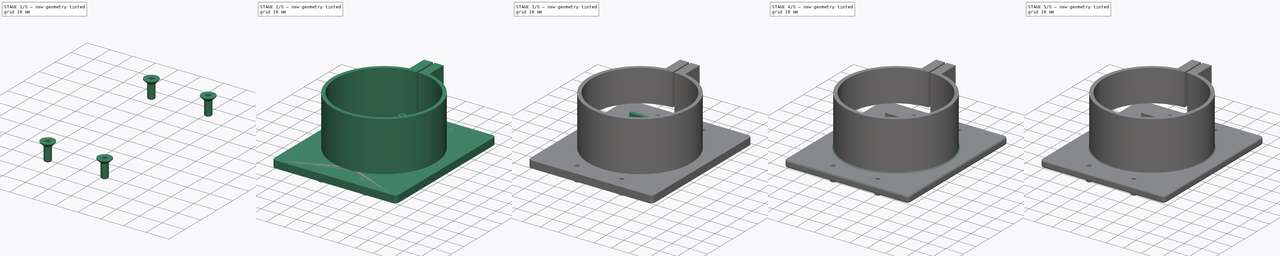
[diagram: build sequence overview — one tinted view per stage of 5, left to right]
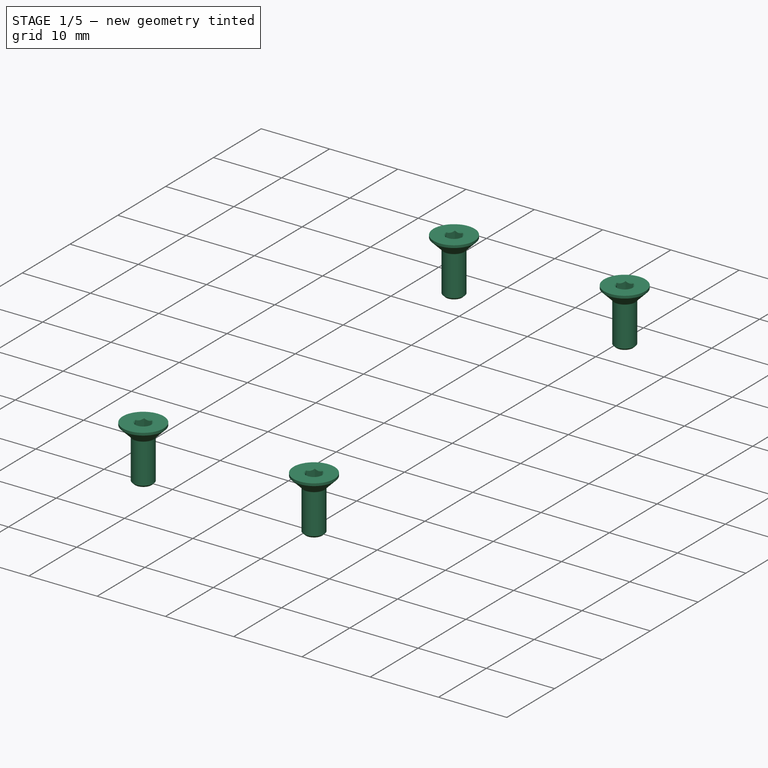
[diagram: stage 1 of 5 — iso view after this stage's code; geometry added in this stage tinted green]
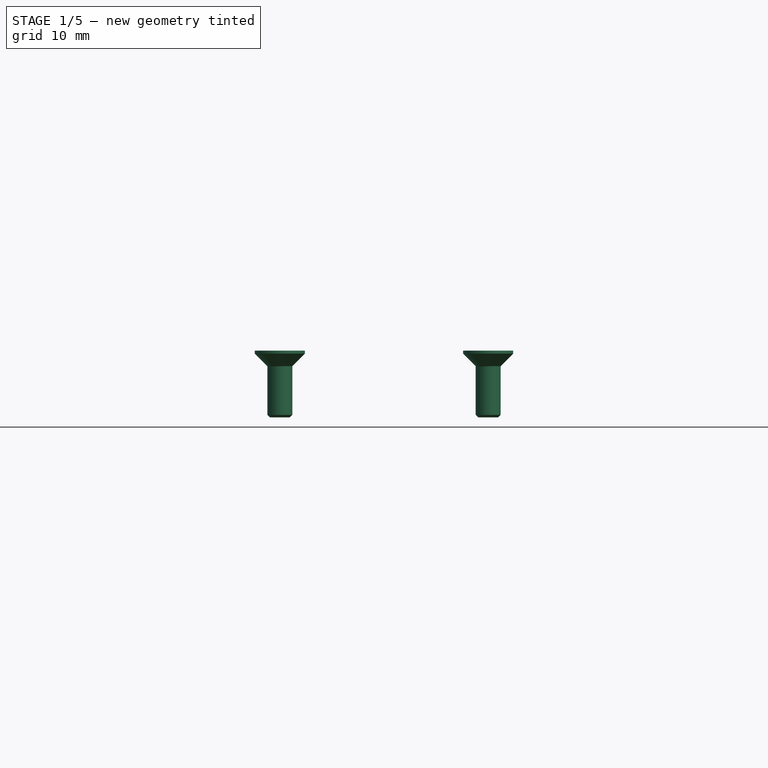
[diagram: stage 1 of 5 — front view after this stage's code; geometry added in this stage tinted green]
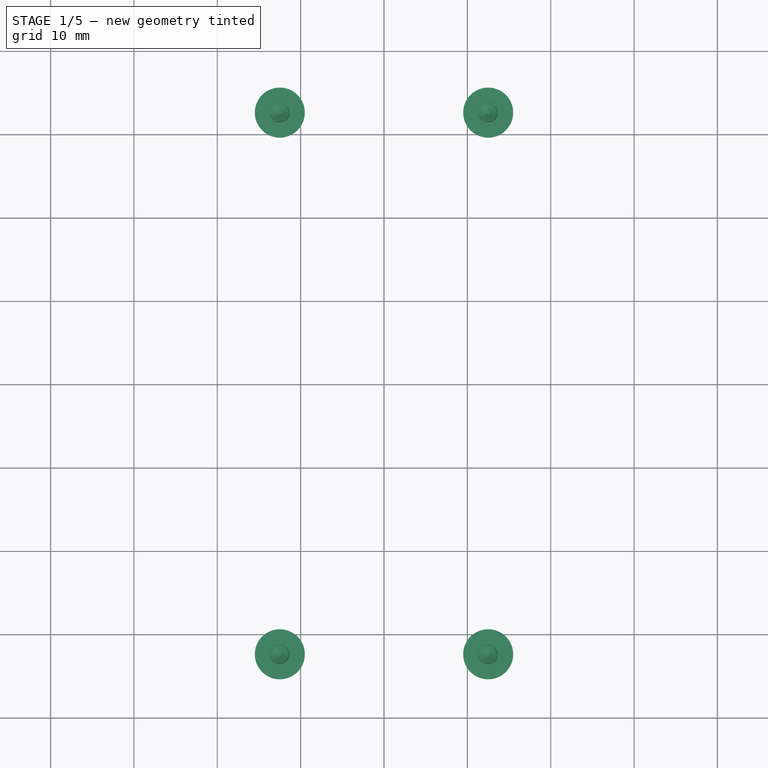
[diagram: stage 1 of 5 — top view after this stage's code; geometry added in this stage tinted green]
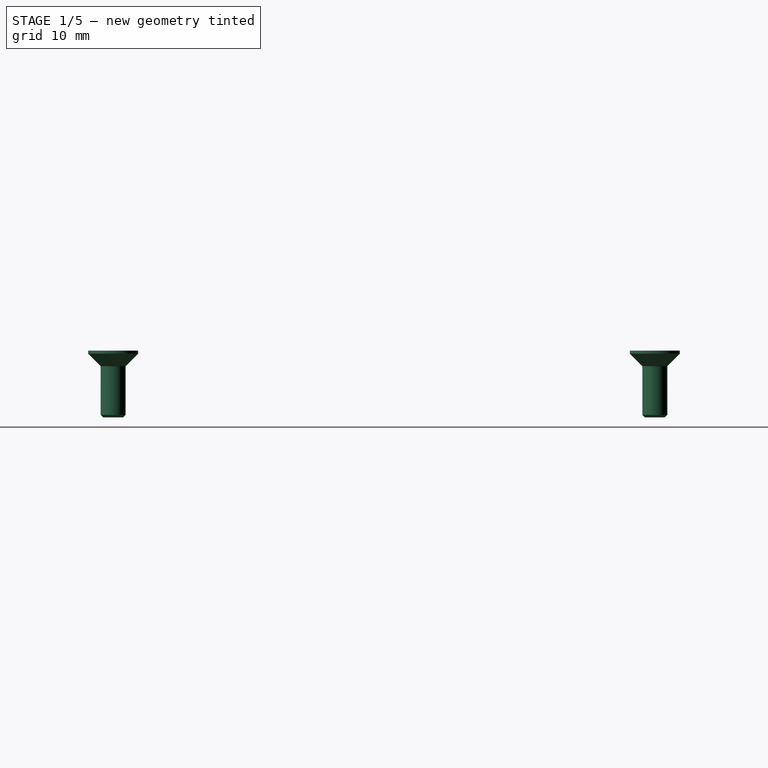
[diagram: stage 1 of 5 — right view after this stage's code; geometry added in this stage tinted green]
FCSTD DOCUMENT  (FreeCAD 0.20R29603 (Git))
Label: ST40_holder
Comment: Holder for a Raymarine ST40 Instrument with bay for seatalk_wifi hardware.
License: All rights reserved
LicenseURL: http://en.wikipedia.org/wiki/All_rights_reserved
objects: Sketcher::SketchObject×9, Part::FeaturePython×6, PartDesign::Pad×4, PartDesign::Fillet×4, PartDesign::Hole×3, PartDesign::Pocket×2, PartDesign::Body×2, Part::Feature×2
note: 45 computed .brp shape members not serialized (recipe doc carries the construction recipe); baked Part::Feature solids carry a one-line shape summary decoded from their .brp

FEATURE [Part::Feature] Part__Feature  label="DIN Left (author: marauder156)"
  Placement = pos=(0,-26.5,-10) rot=(1,0,0;1.5708rad)
  shape: bbox 60.03 x 12.3 x 16.01 mm, 90 faces (baked)
FEATURE [Part::Feature] Part__Feature001  label="DIN Right (author: marauder156)"
  Placement = pos=(0,38.5,-10) rot=(1,0,0;1.5708rad)
  shape: bbox 60.03 x 12.3 x 16.01 mm, 90 faces (baked)
FEATURE [Part::FeaturePython] Screw002  label="M3x8-Screw_1"  # Fasteners workbench fastener (typed FeaturePython)
  Placement = pos=(12.5,-32.5,4) rot=(0,0,1;0rad)
  diameter = 3
  invert = false
  leftHanded = false
  length = 0
  lengthCustom = 8
  matchOuter = false
  offset = 0
  thread = false
  type = 29
FEATURE [Part::FeaturePython] Screw003  label="M3x8-Screw_2"  # Fasteners workbench fastener (typed FeaturePython)
  Placement = pos=(-12.5,-32.5,4) rot=(0,0,1;0rad)
  diameter = 3
  invert = false
  leftHanded = false
  length = 0
  lengthCustom = 8
  matchOuter = false
  offset = 0
  thread = false
  type = 29
FEATURE [Part::FeaturePython] Screw004  label="M3x8-Screw_3"  # Fasteners workbench fastener (typed FeaturePython)
  Placement = pos=(-12.5,32.5,4) rot=(0,0,1;0rad)
  diameter = 3
  invert = false
  leftHanded = false
  length = 0
  lengthCustom = 8
  matchOuter = false
  offset = 0
  thread = false
  type = 29
FEATURE [Part::FeaturePython] Screw005  label="M3x8-Screw_4"  # Fasteners workbench fastener (typed FeaturePython)
  Placement = pos=(12.5,32.5,4) rot=(0,0,1;0rad)
  diameter = 3
  invert = false
  leftHanded = false
  length = 0
  lengthCustom = 8
  matchOuter = false
  offset = 0
  thread = false
  type = 29
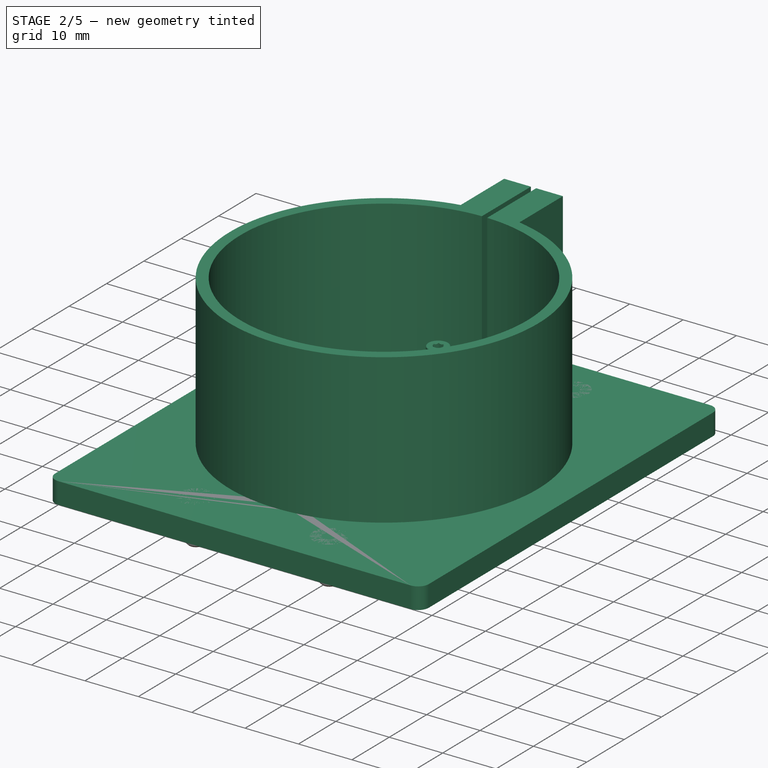
[diagram: stage 2 of 5 — iso view after this stage's code; geometry added in this stage tinted green]
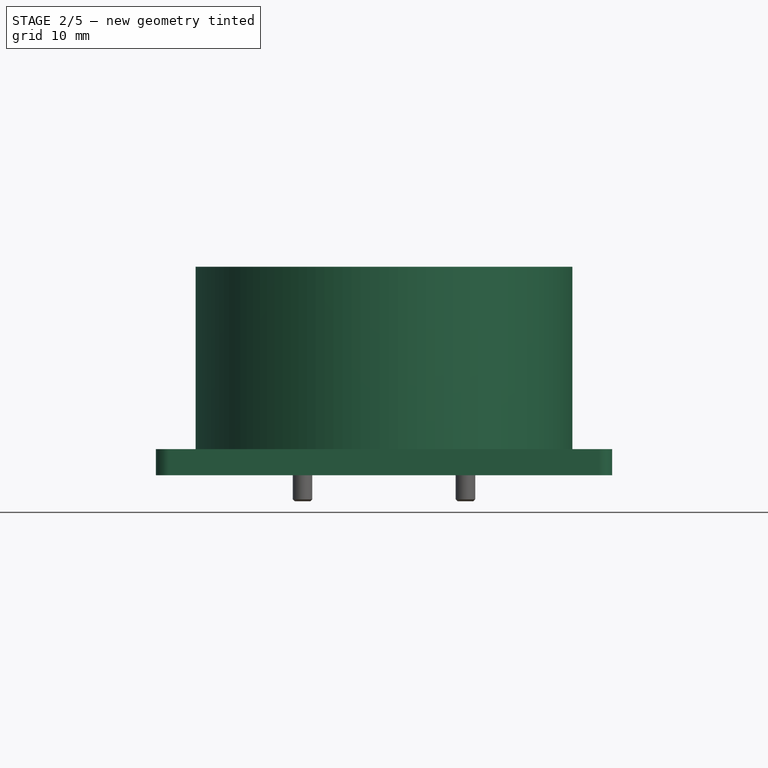
[diagram: stage 2 of 5 — front view after this stage's code; geometry added in this stage tinted green]
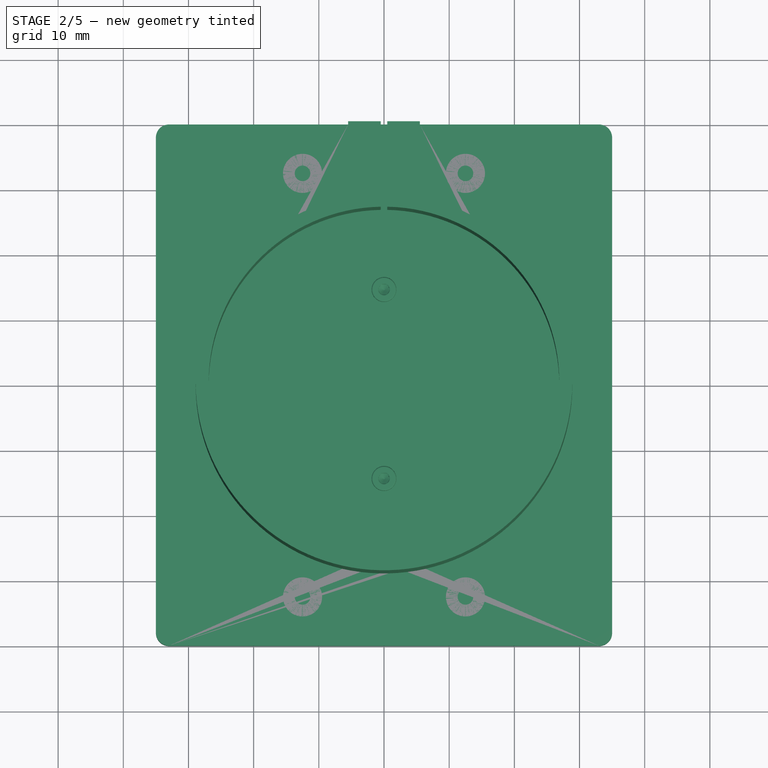
[diagram: stage 2 of 5 — top view after this stage's code; geometry added in this stage tinted green]
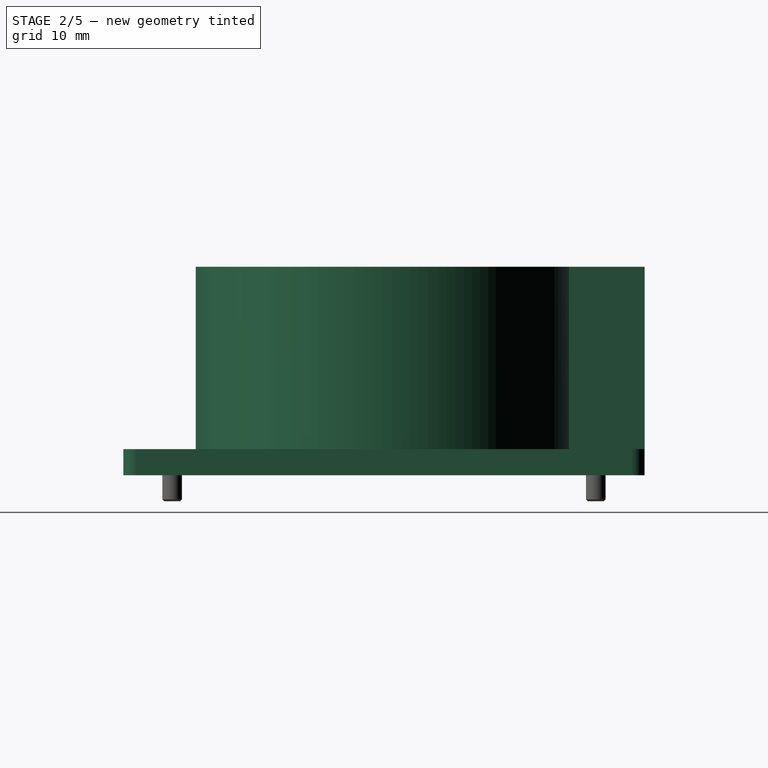
[diagram: stage 2 of 5 — right view after this stage's code; geometry added in this stage tinted green]
FEATURE [Sketcher::SketchObject] Sketch  label="Sketch Base"
  FullyConstrained = true
  MapMode = 5
  Support = -> [XY_Plane]
  sketch-geometry (8):
    g0: LineSegment StartX=-33 StartY=40 StartZ=0 EndX=33 EndY=40 EndZ=0
    g1: LineSegment StartX=35 StartY=38 StartZ=0 EndX=35 EndY=-38 EndZ=0
    g2: LineSegment StartX=33 StartY=-40 StartZ=0 EndX=-33 EndY=-40 EndZ=0
    g3: LineSegment StartX=-35 StartY=-38 StartZ=0 EndX=-35 EndY=38 EndZ=0
    g4: ArcOfCircle CenterX=-33 CenterY=38 CenterZ=0 NormalX=0 NormalY=0 NormalZ=1 AngleXU=0 Radius=2 StartAngle=1.5708 EndAngle=3.14159
    g5: ArcOfCircle CenterX=33 CenterY=38 CenterZ=0 NormalX=0 NormalY=0 NormalZ=1 AngleXU=0 Radius=2 StartAngle=-9e-16 EndAngle=1.5708
    g6: ArcOfCircle CenterX=-33 CenterY=-38 CenterZ=0 NormalX=0 NormalY=0 NormalZ=1 AngleXU=0 Radius=2 StartAngle=3.14159 EndAngle=4.71239
    g7: ArcOfCircle CenterX=33 CenterY=-38 CenterZ=0 NormalX=0 NormalY=0 NormalZ=1 AngleXU=0 Radius=2 StartAngle=4.71239 EndAngle=6.28319
  constraints (18):
    c: Horizontal(g2)
    c: Vertical(g1)
    c: Tangent(g3,g4) = 1.5708
    c: Tangent(g0,g4) = 1.5708
    c: Tangent(g0,g5) = 1.5708
    c: Tangent(g1,g5) = 1.5708
    c: Tangent(g3,g6) = 1.5708
    c: Tangent(g2,g6) = 1.5708
    c: Tangent(g2,g7) = 1.5708
    c: Tangent(g1,g7) = 1.5708
    c: Equal(g4,g5)
    c: Equal(g5,g7)
    c: Equal(g7,g6)
    c: Radius(g5) = 2
    c: DistanceX(g3,g1) = 70  'base_width'
    c: DistanceY(g2,g0) = 80  'base_height'
    c: Symmetric(g0,g0,g-2)
    c: Symmetric(g3,g3,g-1)
FEATURE [PartDesign::Pad] Pad  label="Pad Base"
  AlongSketchNormal = false
  Direction = (0,0,1)
  Length = 4
  Length2 = 100
  Profile = -> Sketch
  Type = 0
FEATURE [Sketcher::SketchObject] Sketch001  label="Sketch Holder"
  AttachmentOffset = pos=(0,0,4) rot=(0,0,1;0rad)
  FullyConstrained = true
  MapMode = 5
  Placement = pos=(0,0,4) rot=(0,0,1;0rad)
  Support = -> [XY_Plane]
  expr: .AttachmentOffset.Base.z = Pad.Length
  expr: Constraints[19] = Sketch.Constraints.base_height / 2
  sketch-geometry (8):
    g0: ArcOfCircle CenterX=0 CenterY=0 CenterZ=0 NormalX=0 NormalY=0 NormalZ=1 AngleXU=0 Radius=26.9 StartAngle=1.58938 EndAngle=7.83539
    g1: ArcOfCircle CenterX=0 CenterY=0 CenterZ=0 NormalX=0 NormalY=0 NormalZ=1 AngleXU=0 Radius=28.9 StartAngle=1.76228 EndAngle=7.6625
    g2: LineSegment StartX=-5.5 StartY=28.3718 StartZ=0 EndX=-5.5 EndY=40 EndZ=0
    g3: LineSegment StartX=-5.5 StartY=40 StartZ=0 EndX=-0.5 EndY=40 EndZ=0
    g4: LineSegment StartX=-0.5 StartY=26.8954 StartZ=0 EndX=-0.5 EndY=40 EndZ=0
    g5: LineSegment StartX=0.5 StartY=26.8954 StartZ=0 EndX=0.5 EndY=40 EndZ=0
    g6: LineSegment StartX=0.5 StartY=40 StartZ=0 EndX=5.5 EndY=40 EndZ=0
    g7: LineSegment StartX=5.5 StartY=40 StartZ=0 EndX=5.5 EndY=28.3718 EndZ=0
  constraints (24):
    c: Coincident(g0,g-1)
    c: Diameter(g0) = 53.8
    c: Coincident(g1,g0)
    c: Diameter(g1) = 57.8
    c: Coincident(g2,g1)
    c: Vertical(g2)
    c: Coincident(g3,g2)
    c: Horizontal(g3)
    c: Coincident(g4,g0)
    c: Coincident(g4,g3)
    c: Coincident(g5,g0)
    c: Coincident(g6,g5)
    c: Coincident(g7,g6)
    c: Coincident(g7,g1)
    c: Vertical(g4)
    c: Vertical(g5)
    c: Vertical(g7)
    c: Horizontal(g6)
    c: Horizontal(g3,g5)
    c: DistanceY(g0,g5) = 40
    c: Equal(g3,g6)
    c: DistanceX(g3,g3) = 5  'wall_thickness'
    c: Horizontal(g0,g0)
    c: DistanceX(g3,g5) = 1  'slit_width'
FEATURE [Sketcher::SketchObject] Sketch002  label="Sketch Cutout"
  FullyConstrained = true
  MapMode = 5
  Placement = pos=(0,0,0) rot=(0.57735,0.57735,0.57735;2.0944rad)
  Support = -> [YZ_Plane]
  expr: Constraints[10] = Pad.Length
  expr: Constraints[11] = Sketch.Constraints.base_height / 2
  sketch-geometry (4):
    g0: LineSegment StartX=0 StartY=14 StartZ=0 EndX=40 EndY=14 EndZ=0
    g1: LineSegment StartX=40 StartY=14 StartZ=0 EndX=40 EndY=4 EndZ=0
    g2: LineSegment StartX=40 StartY=4 StartZ=0 EndX=0 EndY=4 EndZ=0
    g3: LineSegment StartX=0 StartY=4 StartZ=0 EndX=0 EndY=14 EndZ=0
  constraints (12):
    c: Coincident(g0,g1)
    c: Coincident(g1,g2)
    c: Coincident(g2,g3)
    c: Coincident(g3,g0)
    c: Horizontal(g0)
    c: Horizontal(g2)
    c: Vertical(g1)
    c: Vertical(g3)
    c: PointOnObject(g0,g-2)
    c: DistanceY(g3,g3) = 10
    c: DistanceY(g-1,g2) = 4
    c: DistanceX(g2,g1) = 40
FEATURE [Sketcher::SketchObject] Sketch003  label="Sketch Hex"
  AttachmentOffset = pos=(0,0,5.5) rot=(0,0,1;0rad)
  FullyConstrained = true
  MapMode = 5
  Placement = pos=(5.5,-1.2e-15,1.2e-15) rot=(0.57735,0.57735,0.57735;2.0944rad)
  Support = -> [YZ_Plane]
  expr: .AttachmentOffset.Base.z = <<Pad Holder>>.<<$Sketch Holder.>>.Constraints.wall_thickness + <<Pad Holder>>.<<$Sketch Holder.>>.Constraints.slit_width / 2
  sketch-geometry (7):
    g0: LineSegment StartX=33 StartY=20.8246 StartZ=0 EndX=35.75 EndY=22.4123 EndZ=0
    g1: LineSegment StartX=35.75 StartY=22.4123 StartZ=0 EndX=35.75 EndY=25.5877 EndZ=0
    g2: LineSegment StartX=35.75 StartY=25.5877 StartZ=0 EndX=33 EndY=27.1754 EndZ=0
    g3: LineSegment StartX=33 StartY=27.1754 StartZ=0 EndX=30.25 EndY=25.5877 EndZ=0
    g4: LineSegment StartX=30.25 StartY=25.5877 StartZ=0 EndX=30.25 EndY=22.4123 EndZ=0
    g5: LineSegment StartX=30.25 StartY=22.4123 StartZ=0 EndX=33 EndY=20.8246 EndZ=0
    g6: Circle CenterX=33 CenterY=24 CenterZ=0 NormalX=0 NormalY=0 NormalZ=1 AngleXU=0 Radius=3.17543
  constraints (17):
    c: Coincident(g0,g1)
    c: Coincident(g1,g2)
    c: Coincident(g2,g3)
    c: Coincident(g3,g4)
    c: Coincident(g4,g5)
    c: Coincident(g5,g0)
    c: Equal(g0, g1-g5) x5
    c: PointOnObject(g0,g6)
    c: PointOnObject(g1,g6)
    c: PointOnObject(g2,g6)
    c: PointOnObject(g3,g6)
    c: PointOnObject(g4,g6)
    c: PointOnObject(g5,g6)
    c: DistanceX(g6) = 33  'nut_x'
    c: DistanceY(g6) = 24  'nut_y'
    c: Vertical(g0,g6)
    c: DistanceX(g3,g1) = 5.5
FEATURE [Sketcher::SketchObject] Sketch004  label="Sketch Cap Screw"
  AttachmentOffset = pos=(0,0,-5.5) rot=(0,0,1;0rad)
  FullyConstrained = true
  MapMode = 5
  Placement = pos=(-5.5,1.2e-15,-1.2e-15) rot=(0.57735,0.57735,0.57735;2.0944rad)
  Support = -> [YZ_Plane]
  expr: .AttachmentOffset.Base.z = -(<<Pad Holder>>.<<$Sketch Holder.>>.Constraints.wall_thickness + <<Pad Holder>>.<<$Sketch Holder.>>.Constraints.slit_width / 2)
  expr: Constraints[0] = Sketch003.Constraints.nut_y
  expr: Constraints[1] = Sketch003.Constraints.nut_x
  sketch-geometry (1):
    g0: Circle CenterX=33 CenterY=24 CenterZ=0 NormalX=0 NormalY=0 NormalZ=1 AngleXU=0 Radius=3
  constraints (3):
    c: DistanceY(g-1,g0) = 24
    c: DistanceX(g-1,g0) = 33
    c: Diameter(g0) = 6
FEATURE [Sketcher::SketchObject] Sketch005  label="Sketch PCB Housing"
  AttachmentOffset = pos=(0,0,4) rot=(0,0,1;0rad)
  FullyConstrained = true
  MapMode = 5
  Placement = pos=(0,0,4) rot=(0,0,1;0rad)
  Support = -> [XY_Plane]
  expr: .AttachmentOffset.Base.z = <<Pad Base>>.Length
  expr: Constraints[17] = .Constraints.wall_thickness
  expr: Constraints[51] = .Constraints.wall_thickness
  sketch-geometry (28):
    g0: LineSegment StartX=-14.5 StartY=12.5 StartZ=0 EndX=10.5 EndY=12.5 EndZ=0
    g1: LineSegment StartX=10.5 StartY=12.5 StartZ=0 EndX=10.5 EndY=10 EndZ=0
    g2: LineSegment StartX=11 StartY=9.5 StartZ=0 EndX=12 EndY=9.5 EndZ=0
    g3: LineSegment StartX=12.5 StartY=10 StartZ=0 EndX=12.5 EndY=14 EndZ=0
    g4: LineSegment StartX=12 StartY=14.5 StartZ=0 EndX=2.5 EndY=14.5 EndZ=0
    g5: LineSegment StartX=-24 StartY=-12.5 StartZ=0 EndX=10.5 EndY=-12.5 EndZ=0
    g6: LineSegment StartX=10.5 StartY=-12.5 StartZ=0 EndX=10.5 EndY=-10 EndZ=0
    g7: LineSegment StartX=11 StartY=-9.5 StartZ=0 EndX=12 EndY=-9.5 EndZ=0
    g8: LineSegment StartX=12.5 StartY=-10 StartZ=0 EndX=12.5 EndY=-14 EndZ=0
    g9: LineSegment StartX=12 StartY=-14.5 StartZ=0 EndX=2.5 EndY=-14.5 EndZ=0
    g10: ArcOfCircle CenterX=12 CenterY=14 CenterZ=0 NormalX=0 NormalY=0 NormalZ=1 AngleXU=0 Radius=0.5 StartAngle=1.3e-15 EndAngle=1.5708
    g11: ArcOfCircle CenterX=12 CenterY=-14 CenterZ=0 NormalX=0 NormalY=0 NormalZ=1 AngleXU=0 Radius=0.5 StartAngle=4.71239 EndAngle=6.28319
    g12: LineSegment StartX=-15 StartY=13 StartZ=0 EndX=-15 EndY=14 EndZ=0
    g13: LineSegment StartX=-24.5 StartY=-13 StartZ=0 EndX=-24.5 EndY=-14 EndZ=0
    g14: ArcOfCircle CenterX=11 CenterY=10 CenterZ=0 NormalX=0 NormalY=0 NormalZ=1 AngleXU=0 Radius=0.5 StartAngle=3.14159 EndAngle=4.71239
    g15: ArcOfCircle CenterX=12 CenterY=10 CenterZ=0 NormalX=0 NormalY=0 NormalZ=1 AngleXU=0 Radius=0.5 StartAngle=4.71239 EndAngle=6.28319
    g16: ArcOfCircle CenterX=11 CenterY=-10 CenterZ=0 NormalX=0 NormalY=0 NormalZ=1 AngleXU=0 Radius=0.5 StartAngle=1.5708 EndAngle=3.14159
    g17: ArcOfCircle CenterX=12 CenterY=-10 CenterZ=0 NormalX=0 NormalY=0 NormalZ=1 AngleXU=0 Radius=0.5 StartAngle=5e-16 EndAngle=1.5708
    g18: ArcOfCircle CenterX=-14.5 CenterY=13 CenterZ=0 NormalX=0 NormalY=0 NormalZ=1 AngleXU=0 Radius=0.5 StartAngle=3.14159 EndAngle=4.71239
    g19: ArcOfCircle CenterX=-14.5 CenterY=14 CenterZ=0 NormalX=0 NormalY=0 NormalZ=1 AngleXU=0 Radius=0.5 StartAngle=1.5708 EndAngle=3.14159
    g20: ArcOfCircle CenterX=-24 CenterY=-13 CenterZ=0 NormalX=0 NormalY=0 NormalZ=1 AngleXU=0 Radius=0.5 StartAngle=1.5708 EndAngle=3.14159
    g21: ArcOfCircle CenterX=-24 CenterY=-14 CenterZ=0 NormalX=0 NormalY=0 NormalZ=1 AngleXU=0 Radius=0.5 StartAngle=3.14159 EndAngle=4.71239
    g22: ArcOfCircle CenterX=0 CenterY=14.5 CenterZ=0 NormalX=0 NormalY=0 NormalZ=1 AngleXU=0 Radius=2.5 StartAngle=-9e-16 EndAngle=3.14159
    g23: ArcOfCircle CenterX=0 CenterY=-14.5 CenterZ=0 NormalX=0 NormalY=0 NormalZ=1 AngleXU=0 Radius=2.5 StartAngle=3.14159 EndAngle=6.28319
    g24: LineSegment StartX=-2.5 StartY=14.5 StartZ=0 EndX=-14.5 EndY=14.5 EndZ=0
    g25: LineSegment StartX=-2.5 StartY=-14.5 StartZ=0 EndX=-24 EndY=-14.5 EndZ=0
    g26: Circle CenterX=0 CenterY=14.5 CenterZ=0 NormalX=0 NormalY=0 NormalZ=1 AngleXU=0 Radius=1
    g27: Circle CenterX=0 CenterY=-14.5 CenterZ=0 NormalX=0 NormalY=0 NormalZ=1 AngleXU=0 Radius=1
  constraints (71):
    c: Horizontal(g0)
    c: Coincident(g0,g1)
    c: Horizontal(g4)
    c: Vertical(g1)
    c: Horizontal(g2)
    c: Vertical(g3)
    c: DistanceY(g-1,g0) = 12.5
    c: Horizontal(g5)
    c: Coincident(g5,g6)
    c: Vertical(g6)
    c: Horizontal(g9)
    c: Horizontal(g7)
    c: Tangent(g4,g10) = -1.5708
    c: Tangent(g3,g10) = -1.5708
    c: Tangent(g9,g11) = 1.5708
    c: Tangent(g8,g11) = 1.5708
    c: Symmetric(g8,g3,g-1)
    c: DistanceY(g0,g4) = 2
    c: Vertical(g12)
    c: Vertical(g13)
    c: Equal(g11,g10)
    c: Tangent(g1,g14) = -1.5708
    c: Tangent(g2,g14) = -1.5708
    c: Tangent(g2,g15) = -1.5708
    c: Tangent(g3,g15) = -1.5708
    c: Equal(g14,g15)
    c: DistanceX(g1,g3) = 2  'wall_thickness'
    c: Radius(g14) = 0.5
    c: DistanceY(g2,g4) = 5
    c: Vertical(g8)
    c: Tangent(g6,g16) = 1.5708
    c: Tangent(g7,g16) = 1.5708
    c: Tangent(g7,g17) = 1.5708
    c: Tangent(g8,g17) = 1.5708
    c: Equal(g14,g16)
    c: Equal(g16,g17)
    c: Symmetric(g1,g6,g-1)
    c: Equal(g15,g10)
    c: Tangent(g12,g18) = 1.5708
    c: Tangent(g0,g18) = -1.5708
    c: Tangent(g12,g19) = 1.5708
    c: Tangent(g13,g20) = -1.5708
    c: Tangent(g5,g20) = 1.5708
    c: Tangent(g13,g21) = -1.5708
    c: Equal(g19,g18)
    c: Equal(g18,g10)
    c: Equal(g20,g21)
    c: Equal(g21,g18)
    c: DistanceX(g13,g-1) = 24.5
    c: DistanceX(g13,g5) = 35
    c: DistanceX(g12,g-1) = 15
    c: DistanceY(g25,g5) = 2
    c: PointOnObject(g22,g-2)
    c: Symmetric(g22,g23,g-1)
    c: Equal(g22,g23)
    c: Diameter(g22) = 5
    c: Coincident(g4,g22)
    c: Coincident(g24,g22)
    c: Coincident(g9,g23)
    c: Coincident(g25,g23)
    c: Horizontal(g22,g4)
    c: Horizontal(g23,g9)
    c: Horizontal(g25)
    c: Horizontal(g23,g9)
    c: Horizontal(g24)
    c: Tangent(g24,g19) = -1.5708
    c: Tangent(g25,g21) = 1.5708
    c: Coincident(g26,g22)
    c: Diameter(g26) = 2
    c: Coincident(g27,g23)
    c: Equal(g27,g26)
FEATURE [Sketcher::SketchObject] Sketch006  label="Sketch Mounting Holes"
  AttachmentOffset = pos=(0,0,4) rot=(0,0,1;0rad)
  FullyConstrained = true
  MapMode = 5
  Placement = pos=(0,0,4) rot=(0,0,1;0rad)
  Support = -> [XY_Plane]
  expr: .AttachmentOffset.Base.z = <<Pad Base>>.Length
  sketch-geometry (8):
    g0: LineSegment StartX=-12.5 StartY=32.5 StartZ=0 EndX=12.5 EndY=32.5 EndZ=0
    g1: LineSegment StartX=12.5 StartY=32.5 StartZ=0 EndX=12.5 EndY=-32.5 EndZ=0
    g2: LineSegment StartX=12.5 StartY=-32.5 StartZ=0 EndX=-12.5 EndY=-32.5 EndZ=0
    g3: LineSegment StartX=-12.5 StartY=-32.5 StartZ=0 EndX=-12.5 EndY=32.5 EndZ=0
    g4: Circle CenterX=-12.5 CenterY=32.5 CenterZ=0 NormalX=0 NormalY=0 NormalZ=1 AngleXU=0 Radius=2.75
    g5: Circle CenterX=12.5 CenterY=32.5 CenterZ=0 NormalX=0 NormalY=0 NormalZ=1 AngleXU=0 Radius=2.75
    g6: Circle CenterX=-12.5 CenterY=-32.5 CenterZ=0 NormalX=0 NormalY=0 NormalZ=1 AngleXU=0 Radius=2.75
    g7: Circle CenterX=12.5 CenterY=-32.5 CenterZ=0 NormalX=0 NormalY=0 NormalZ=1 AngleXU=0 Radius=2.75
  constraints (21):
    c: Coincident(g0,g1)
    c: Coincident(g1,g2)
    c: Coincident(g2,g3)
    c: Coincident(g3,g0)
    c: Horizontal(g0)
    c: Horizontal(g2)
    c: Vertical(g1)
    c: Vertical(g3)
    c: Symmetric(g0,g1,g-1)
    c: DistanceY(g1,g1) = 65
    c: PointOnObject(g4,g0)
    c: PointOnObject(g7,g2)
    c: Equal(g4,g6)
    c: Equal(g6,g7)
    c: Equal(g7,g5)
    c: Vertical(g4,g6)
    c: Symmetric(g4,g5,g-2)
    c: Vertical(g5,g7)
    c: DistanceX(g4,g5) = 25
    c: Coincident(g2,g6)
    c: Diameter(g4) = 5.5
FEATURE [PartDesign::Pad] Pad002  label="Pad Holder"
  AlongSketchNormal = false
  BaseFeature = -> Pad
  Direction = (0,0,1)
  Length = 28
  Length2 = 100
  Profile = -> Sketch001
  Type = 0
FEATURE [PartDesign::Body] Body  label="Body Holder"
  Group = -> [Sketch,Pad,Sketch001,Sketch002,Sketch003,Sketch004,Sketch005,Sketch006,Pad002,Pocket,Pad003,Hole,Pocket001,Hole001,Fillet,Fillet001,Fillet003]
  Origin = -> Origin
  Tip = -> Fillet003
FEATURE [Part::FeaturePython] Screw  label="M2x8-Screw-right"  # Fasteners workbench fastener (typed FeaturePython)
  Placement = pos=(0,14.5,13) rot=(0,0,1;0rad)
  diameter = 2
  invert = false
  leftHanded = false
  length = 4
  lengthCustom = 8
  matchOuter = false
  offset = 0
  thread = false
  type = 45
FEATURE [Part::FeaturePython] Screw001  label="M2x8-Screw-left"  # Fasteners workbench fastener (typed FeaturePython)
  Placement = pos=(0,-14.5,13) rot=(0,0,1;0rad)
  diameter = 2
  invert = false
  leftHanded = false
  length = 4
  lengthCustom = 8
  matchOuter = false
  offset = 0
  thread = false
  type = 45
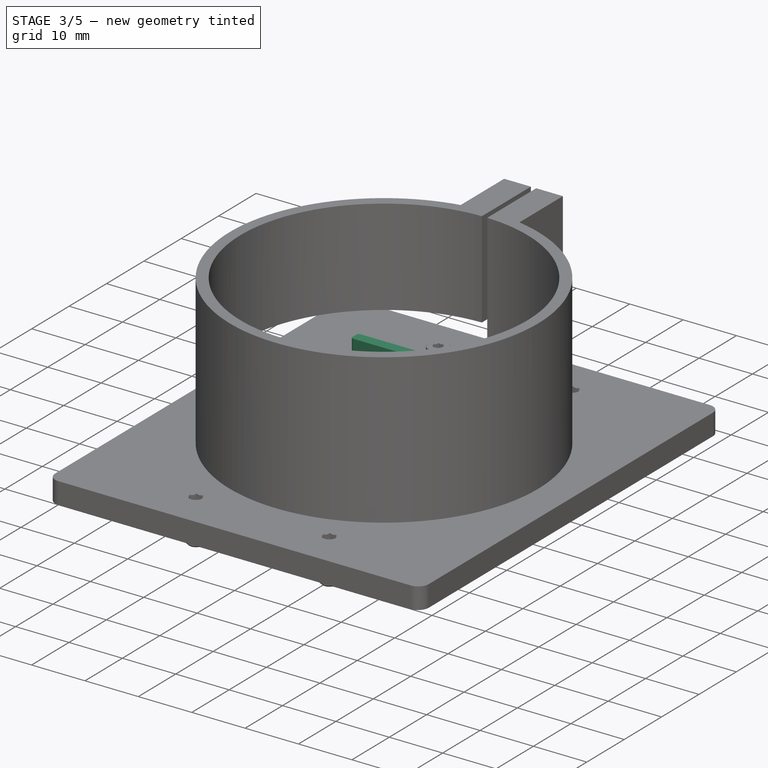
[diagram: stage 3 of 5 — iso view after this stage's code; geometry added in this stage tinted green]
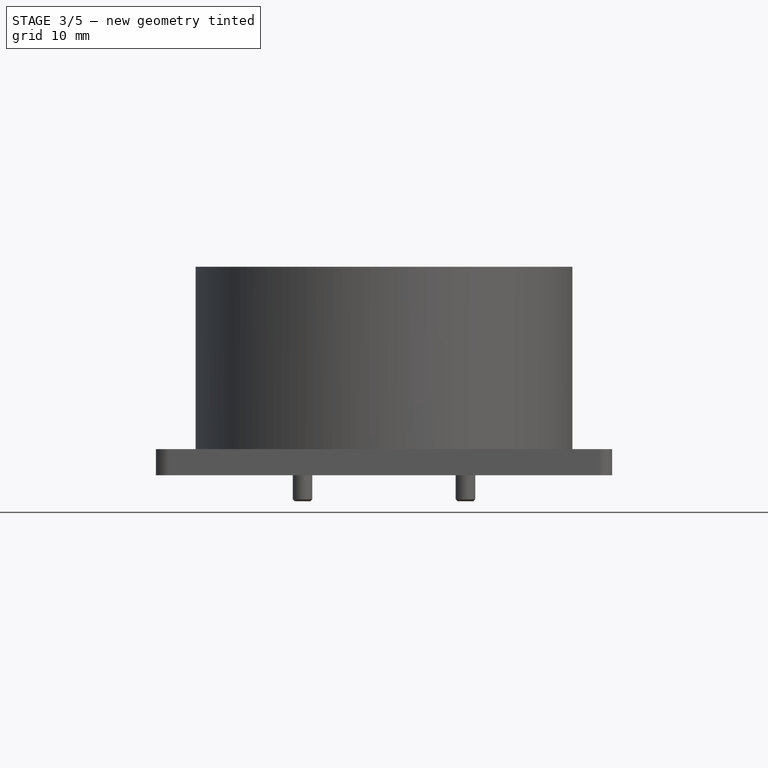
[diagram: stage 3 of 5 — front view after this stage's code; geometry added in this stage tinted green]
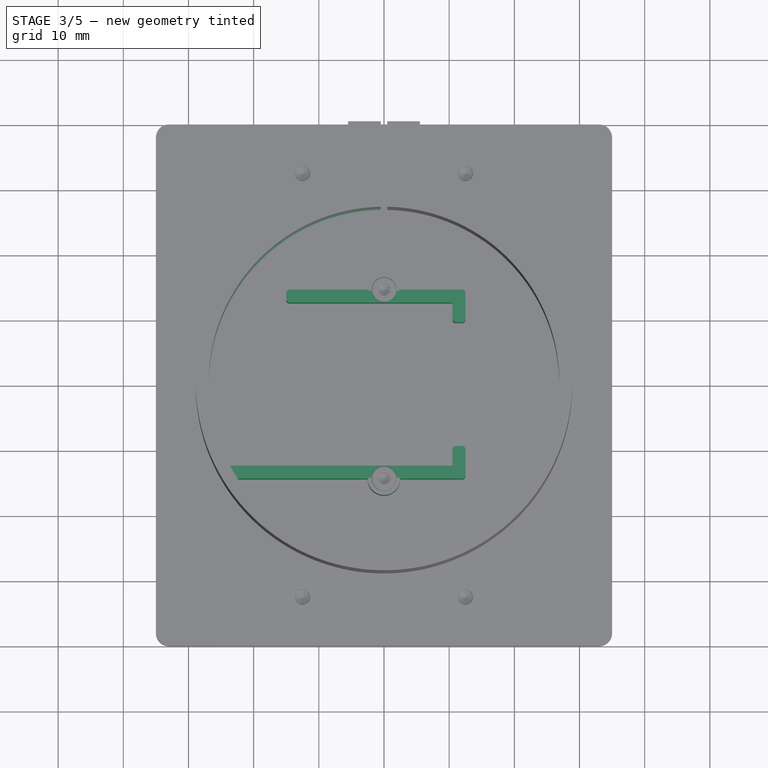
[diagram: stage 3 of 5 — top view after this stage's code; geometry added in this stage tinted green]
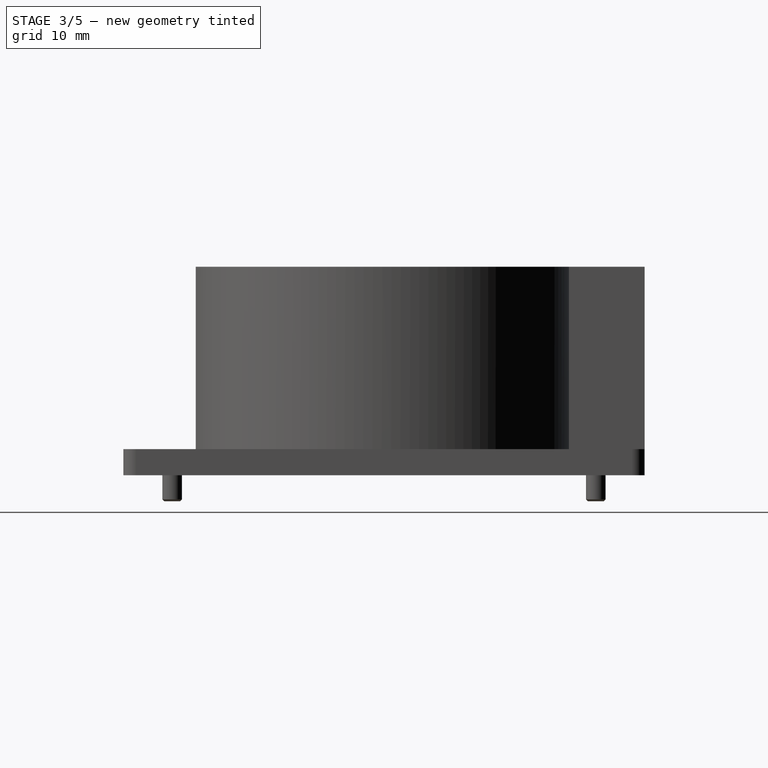
[diagram: stage 3 of 5 — right view after this stage's code; geometry added in this stage tinted green]
FEATURE [PartDesign::Pocket] Pocket  label="Pocket Cutout"
  BaseFeature = -> Pad002
  Direction = (1,1,1)
  Length = 30
  Length2 = 100
  Profile = -> Sketch002
  Type = 0
FEATURE [PartDesign::Pad] Pad003  label="Pad PCB Housing"
  AlongSketchNormal = false
  BaseFeature = -> Pocket
  Direction = (0,0,1)
  Length = 9
  Length2 = 100
  Profile = -> Sketch005
  Type = 0
FEATURE [PartDesign::Hole] Hole  label="Hole Mounting Holes"
  BaseFeature = -> Pad003
  CustomThreadClearance = 0
  Depth = 4
  DepthType = 0
  Diameter = 3.2
  DrillForDepth = false
  DrillPoint = 0
  DrillPointAngle = 118
  HoleCutCountersinkAngle = 90
  HoleCutCustomValues = false
  HoleCutDepth = 0
  HoleCutDiameter = 6
  HoleCutType = 2
  ModelThread = false
  Profile = -> Sketch006
  Tapered = false
  TaperedAngle = 90
  ThreadClass = 0
  ThreadDepth = 4
  ThreadDepthType = 0
  ThreadDirection = 0
  ThreadFit = 0
  ThreadSize = 0
  ThreadType = 0
  Threaded = false
  UseCustomThreadClearance = false
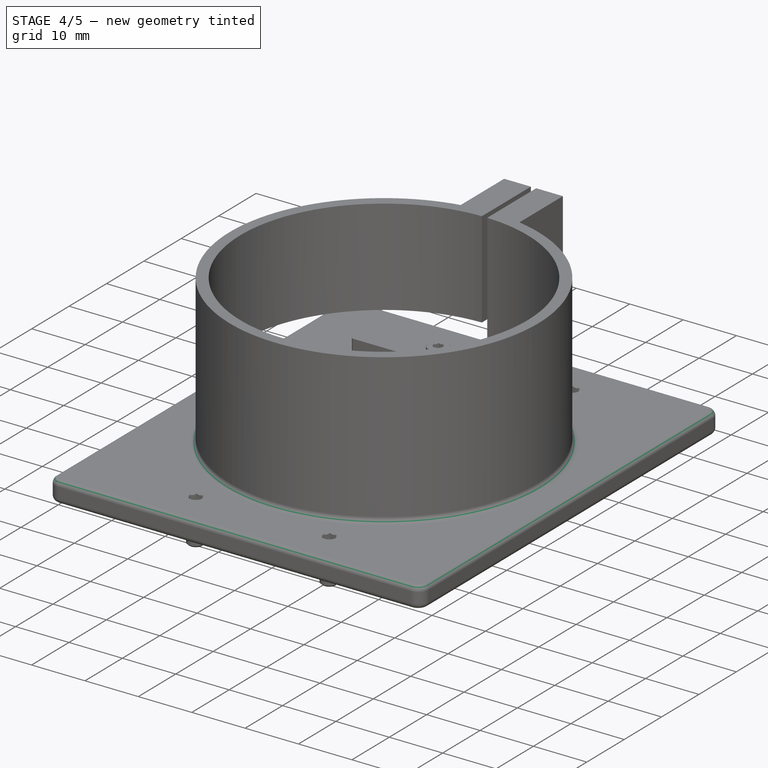
[diagram: stage 4 of 5 — iso view after this stage's code; geometry added in this stage tinted green]
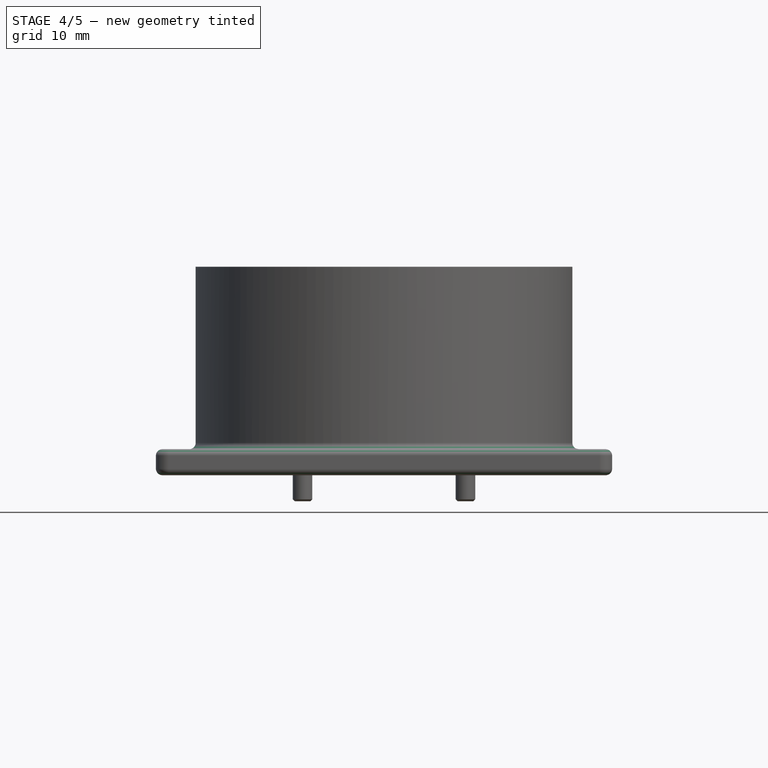
[diagram: stage 4 of 5 — front view after this stage's code; geometry added in this stage tinted green]
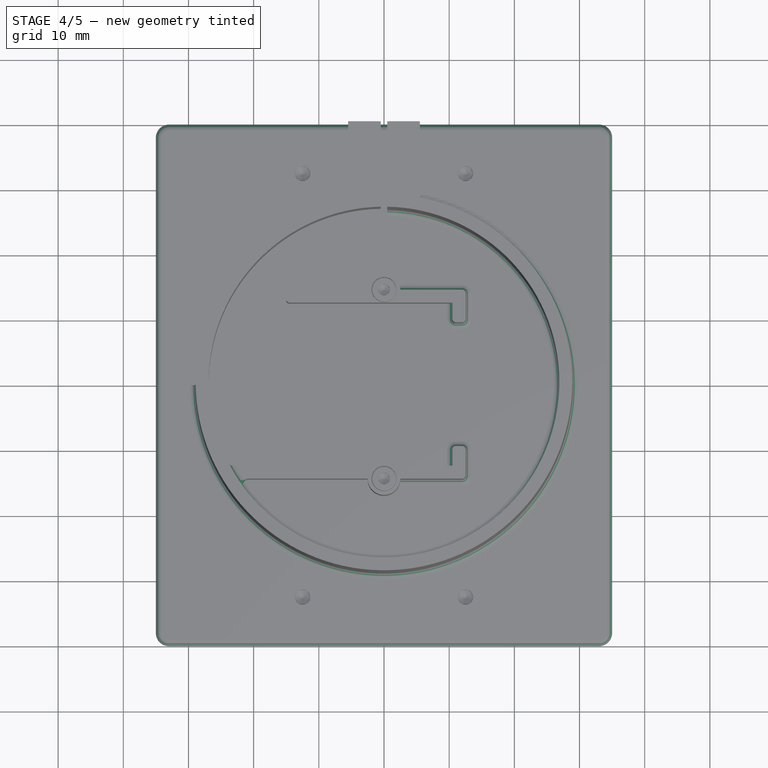
[diagram: stage 4 of 5 — top view after this stage's code; geometry added in this stage tinted green]
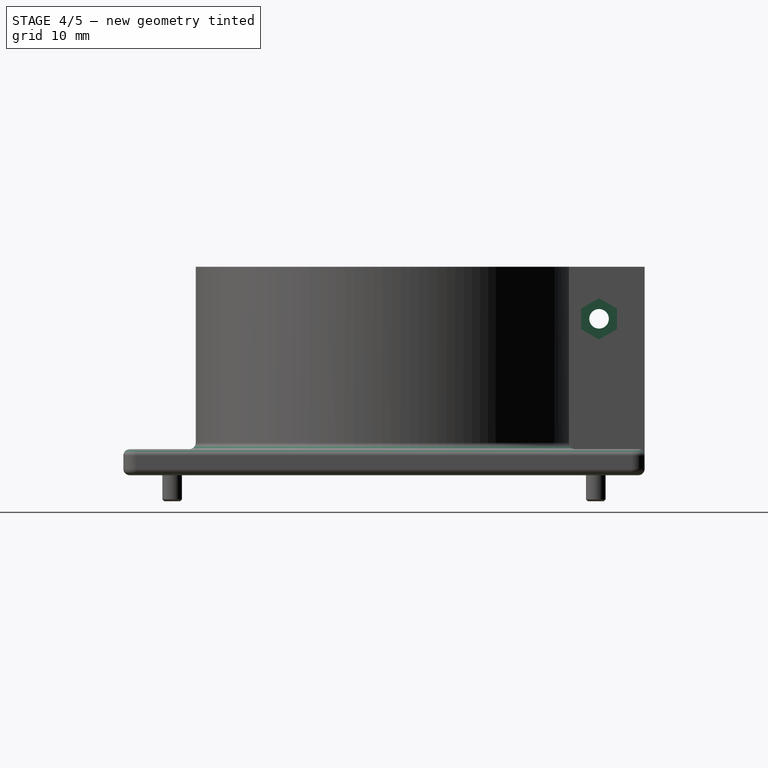
[diagram: stage 4 of 5 — right view after this stage's code; geometry added in this stage tinted green]
FEATURE [PartDesign::Pocket] Pocket001  label="Pocket Hex"
  BaseFeature = -> Hole
  Direction = (-1,2e-16,-3e-16)
  Length = 2
  Length2 = 100
  Profile = -> Sketch003
  Type = 0
FEATURE [PartDesign::Hole] Hole001  label="Hole Cap Screw"
  BaseFeature = -> Pocket001
  CustomThreadClearance = 0
  Depth = 11
  DepthType = 0
  Diameter = 3
  DrillForDepth = false
  DrillPoint = 0
  DrillPointAngle = 118
  HoleCutCountersinkAngle = 90
  HoleCutCustomValues = false
  HoleCutDepth = 3
  HoleCutDiameter = 6.1
  HoleCutType = 1
  ModelThread = false
  Profile = -> Sketch004
  Reversed = true
  Tapered = false
  TaperedAngle = 90
  ThreadClass = 0
  ThreadDepth = 11
  ThreadDepthType = 0
  ThreadDirection = 0
  ThreadFit = 0
  ThreadSize = 0
  ThreadType = 0
  Threaded = false
  UseCustomThreadClearance = false
FEATURE [PartDesign::Fillet] Fillet  label="Fillet Base"
  Base = -> Hole001 [Edge4,Edge3]
  BaseFeature = -> Hole001
  Radius = 1
  SupportTransform = false
  UseAllEdges = false
FEATURE [PartDesign::Fillet] Fillet001  label="Fillet Internal"
  Base = -> Fillet [Edge177,Edge179,Edge178,Edge170,Edge161,Edge158,Edge180,Edge44]
  BaseFeature = -> Fillet
  Radius = 1
  SupportTransform = false
  UseAllEdges = false
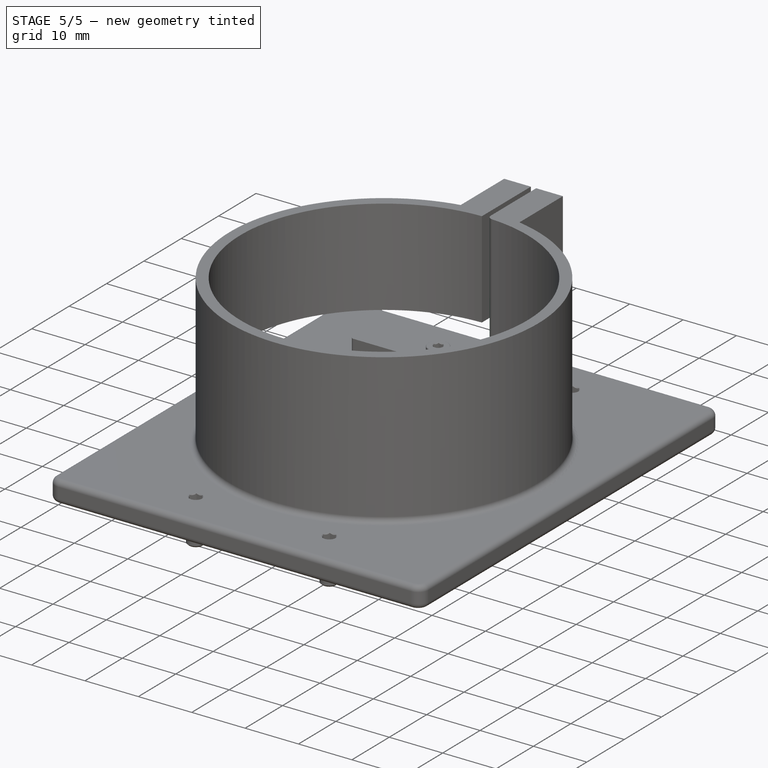
[diagram: stage 5 of 5 — iso view after this stage's code; geometry added in this stage tinted green]
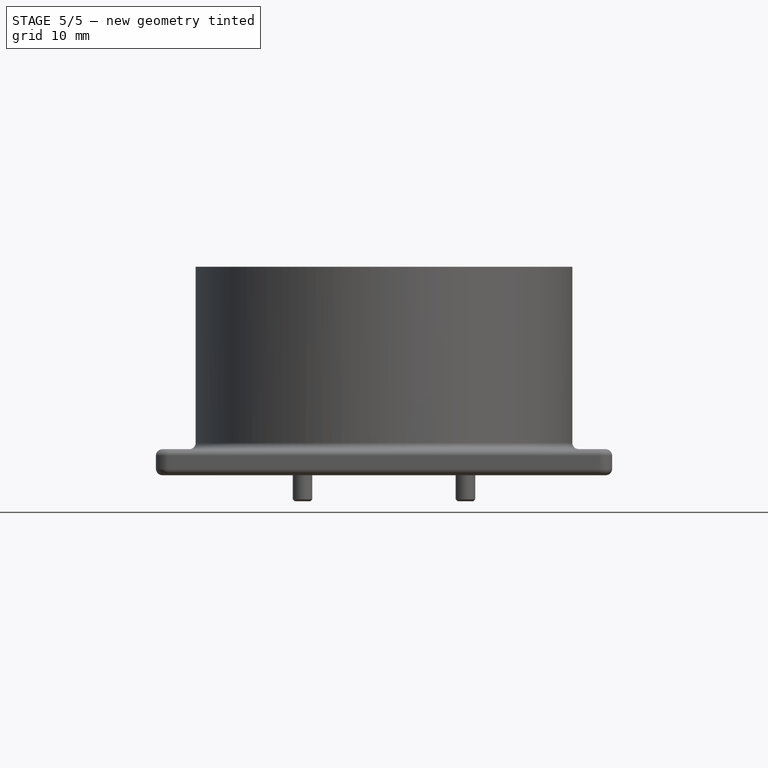
[diagram: stage 5 of 5 — front view after this stage's code; geometry added in this stage tinted green]
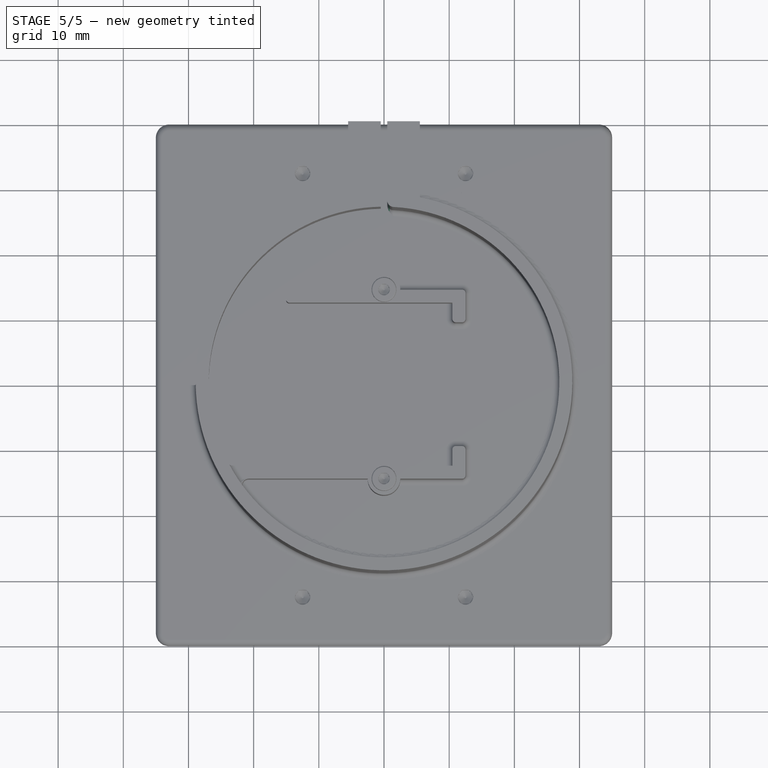
[diagram: stage 5 of 5 — top view after this stage's code; geometry added in this stage tinted green]
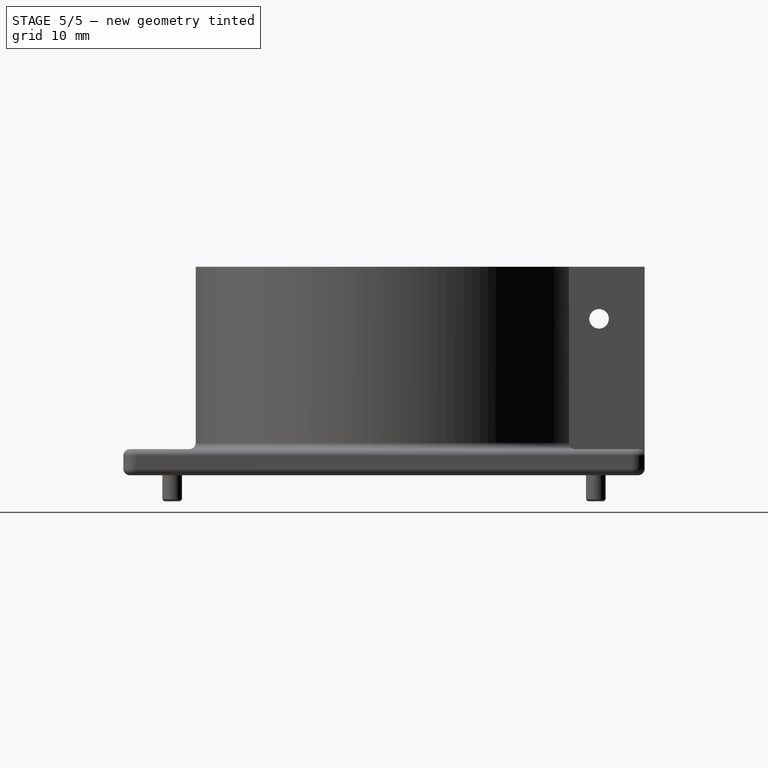
[diagram: stage 5 of 5 — right view after this stage's code; geometry added in this stage tinted green]
FEATURE [Sketcher::SketchObject] Sketch007  label="Sketch Base Lid"
  FullyConstrained = true
  MapMode = 5
  Support = -> [XY_Plane001]
  sketch-geometry (10):
    g0: LineSegment StartX=-20 StartY=14.5 StartZ=0 EndX=-2.5 EndY=14.5 EndZ=0
    g1: LineSegment StartX=12.5 StartY=14 StartZ=0 EndX=12.5 EndY=-14 EndZ=0
    g2: LineSegment StartX=12 StartY=-14.5 StartZ=0 EndX=2.5 EndY=-14.5 EndZ=0
    g3: ArcOfCircle CenterX=0 CenterY=14.5 CenterZ=0 NormalX=0 NormalY=0 NormalZ=1 AngleXU=0 Radius=2.5 StartAngle=2e-16 EndAngle=3.14159
    g4: ArcOfCircle CenterX=0 CenterY=-14.5 CenterZ=0 NormalX=0 NormalY=0 NormalZ=1 AngleXU=0 Radius=2.5 StartAngle=3.14159 EndAngle=6.28319
    g5: LineSegment StartX=2.5 StartY=14.5 StartZ=0 EndX=12 EndY=14.5 EndZ=0
    g6: LineSegment StartX=-2.5 StartY=-14.5 StartZ=0 EndX=-20 EndY=-14.5 EndZ=0
    g7: ArcOfCircle CenterX=0 CenterY=0 CenterZ=0 NormalX=0 NormalY=0 NormalZ=1 AngleXU=0 Radius=24.7032 StartAngle=2.51428 EndAngle=3.7689
    g8: ArcOfCircle CenterX=12 CenterY=14 CenterZ=0 NormalX=0 NormalY=0 NormalZ=1 AngleXU=0 Radius=0.5 StartAngle=-4.44e-14 EndAngle=1.5708
    g9: ArcOfCircle CenterX=12 CenterY=-14 CenterZ=0 NormalX=0 NormalY=0 NormalZ=1 AngleXU=0 Radius=0.5 StartAngle=4.71239 EndAngle=6.28319
  constraints (29):
    c: Horizontal(g0)
    c: Horizontal(g2)
    c: Vertical(g1)
    c: PointOnObject(g3,g-2)
    c: Coincident(g0,g3)
    c: Coincident(g5,g3)
    c: Coincident(g2,g4)
    c: Coincident(g6,g4)
    c: Equal(g3,g4)
    c: Diameter(g3) = 5
    c: Horizontal(g0,g3)
    c: Horizontal(g5)
    c: Horizontal(g4,g2)
    c: Horizontal(g3,g3)
    c: Horizontal(g4,g2)
    c: Horizontal(g6)
    c: Coincident(g7,g-1)
    c: Coincident(g0,g7)
    c: Coincident(g6,g7)
    c: DistanceX(g6,g4) = 20
    c: Symmetric(g4,g3,g-1)
    c: Tangent(g5,g8) = 1.5708
    c: Tangent(g1,g8) = 1.5708
    c: Tangent(g2,g9) = 1.5708
    c: Tangent(g1,g9) = 1.5708
    c: Vertical(g5,g2)
    c: DistanceY(g2,g5) = 29
    c: Radius(g8) = 0.5
    c: DistanceX(g4,g1) = 12.5
FEATURE [PartDesign::Pad] Pad004  label="Pad Base Lid"
  AlongSketchNormal = false
  Direction = (0,0,1)
  Length = 2
  Length2 = 100
  Profile = -> Sketch007
  Type = 0
FEATURE [Sketcher::SketchObject] Sketch008
  ExternalGeometry = -> [Pad004]
  FullyConstrained = true
  MapMode = 5
  Placement = pos=(0,0,2) rot=(0,0,1;0rad)
  Support = -> [Pad004]
  sketch-geometry (2):
    g0: Circle CenterX=0 CenterY=14.5 CenterZ=0 NormalX=0 NormalY=0 NormalZ=1 AngleXU=0 Radius=1.5
    g1: Circle CenterX=0 CenterY=-14.5 CenterZ=0 NormalX=0 NormalY=0 NormalZ=1 AngleXU=0 Radius=1.5
  constraints (5):
    c: PointOnObject(g0,g-2)
    c: Horizontal(g0,g-3)
    c: Symmetric(g0,g1,g-1)
    c: Equal(g0,g1)
    c: Diameter(g0) = 3
FEATURE [PartDesign::Hole] Hole002
  BaseFeature = -> Pad004
  CustomThreadClearance = 0
  Depth = 2
  DepthType = 0
  Diameter = 2
  DrillForDepth = false
  DrillPoint = 0
  DrillPointAngle = 118
  HoleCutCountersinkAngle = 90
  HoleCutCustomValues = false
  HoleCutDepth = 1.6
  HoleCutDiameter = 4
  HoleCutType = 1
  ModelThread = false
  Profile = -> Sketch008
  Tapered = false
  TaperedAngle = 90
  ThreadClass = 0
  ThreadDepth = 2
  ThreadDepthType = 0
  ThreadDirection = 0
  ThreadFit = 0
  ThreadSize = 0
  ThreadType = 0
  Threaded = false
  UseCustomThreadClearance = false
FEATURE [PartDesign::Fillet] Fillet002
  Base = -> Hole002 [Edge25,Edge4,Edge7,Edge20]
  BaseFeature = -> Hole002
  Radius = 1
  SupportTransform = false
  UseAllEdges = false
FEATURE [PartDesign::Body] Body001  label="Body Lid"
  Group = -> [Sketch007,Pad004,Sketch008,Hole002,Fillet002]
  Origin = -> Origin001
  Placement = pos=(0,0,13) rot=(0,0,1;0rad)
  Tip = -> Fillet002
FEATURE [PartDesign::Fillet] Fillet003
  Base = -> Fillet001 [Edge144,Edge35]
  BaseFeature = -> Fillet001
  Radius = 1
  SupportTransform = false
  UseAllEdges = false
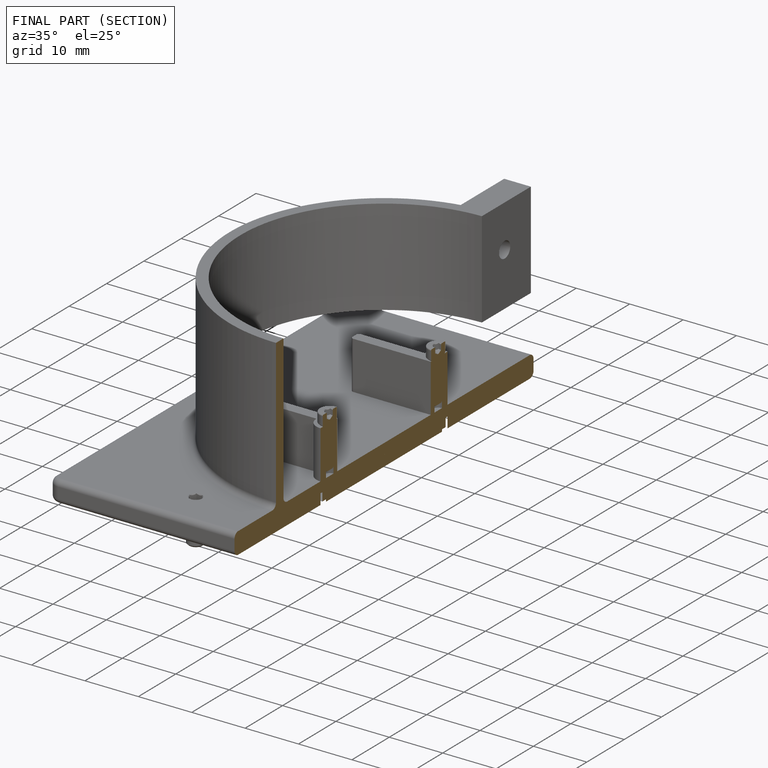
[diagram: finished part — half-section view (interior)]
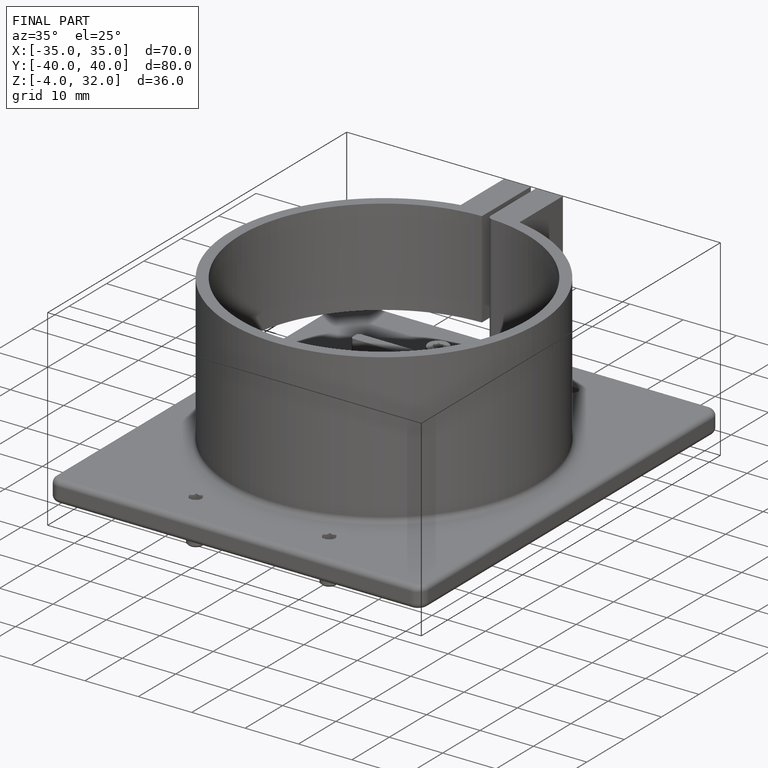
[diagram: finished part — iso view with bounding-box wireframe]
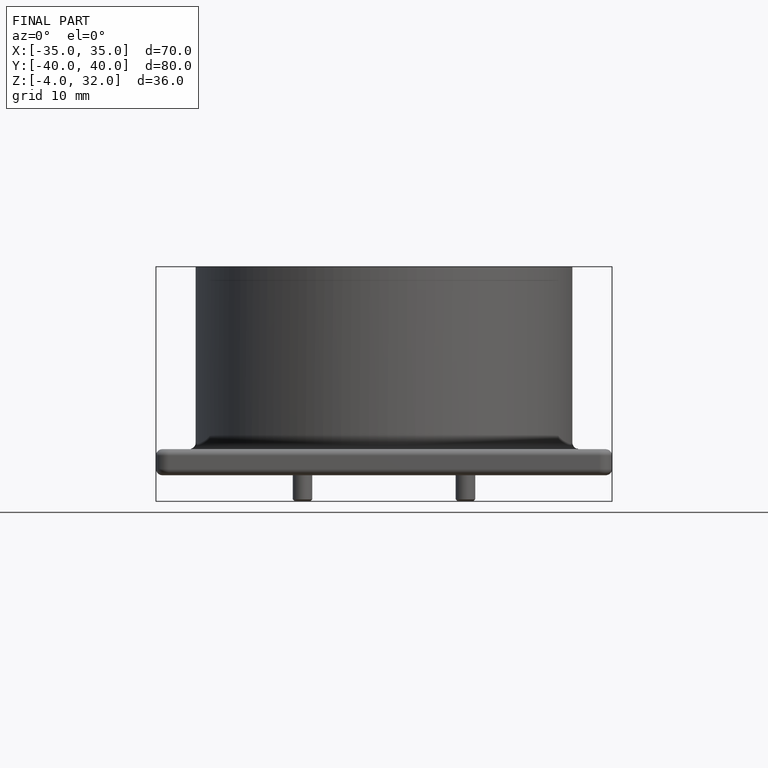
[diagram: finished part — front view with bounding-box wireframe]
